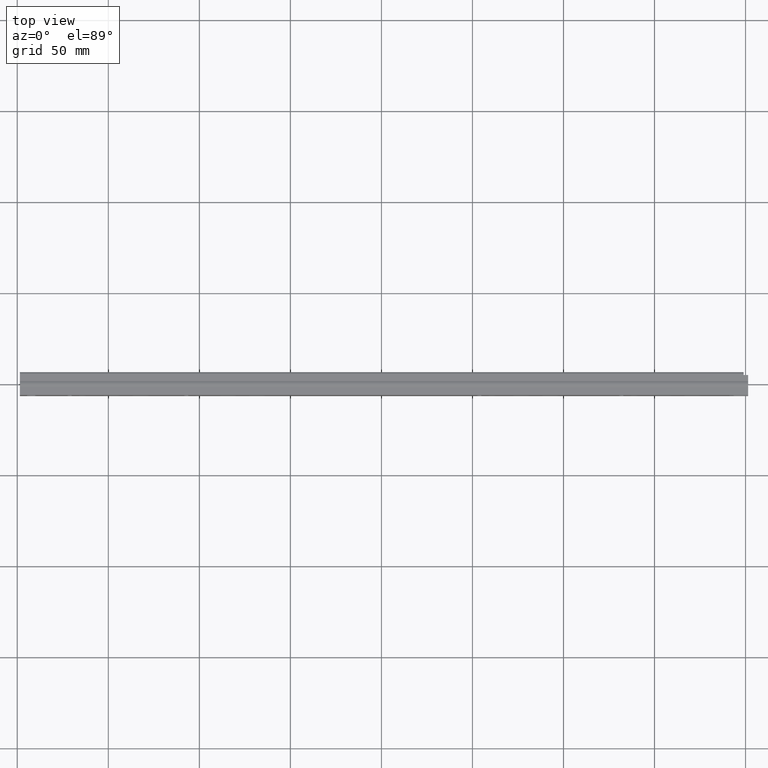
[diagram: clean part render]
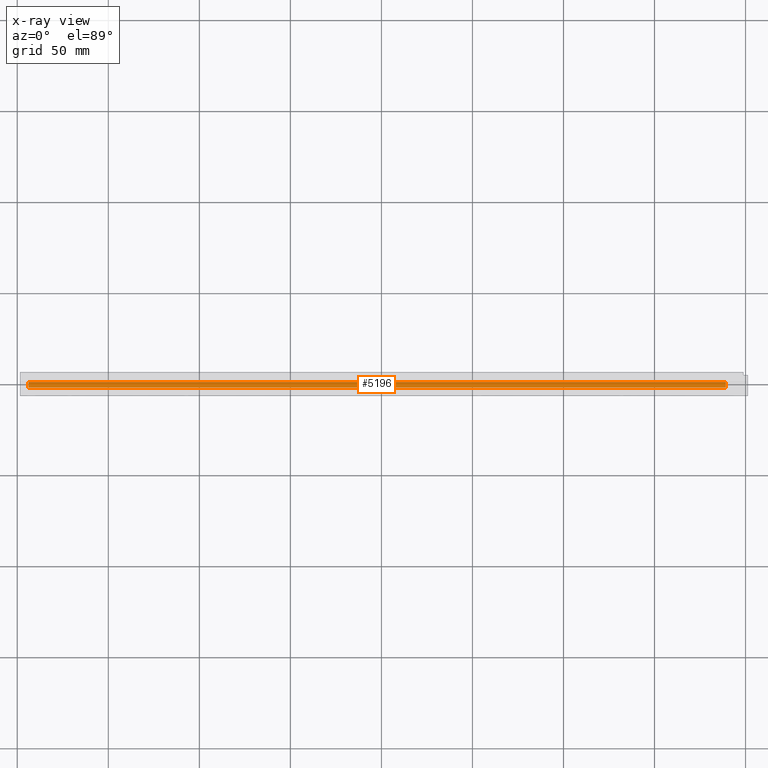
[diagram: x-ray — body ghosted, one internal face saturated and labeled with its STEP entity id]
A machine part, top view, then the same camera in x-ray: the body is ghosted and one INTERNAL B-rep face — a face not visible from any outside direction — is saturated and labeled: STEP entity #5196.
In plain terms, the highlighted cylindrical surface (edge-blend (fillet) strip) has radius 2.25 mm, axis along (1, -0, 0).
Its self-contained STEP definition (entity closure, byte-faithful):
#123=CYLINDRICAL_SURFACE('',#5616,2.25);
#404=FACE_OUTER_BOUND('',#719,.T.);
#719=EDGE_LOOP('',(#4339,#4340,#4341,#4342));
#1194=LINE('',#8309,#1732);
#1195=LINE('',#8311,#1733);
#1732=VECTOR('',#6778,383.);
#1733=VECTOR('',#6781,383.);
#2050=CIRCLE('',#5592,2.25);
#2055=CIRCLE('',#5610,2.25);
#2439=VERTEX_POINT('',#8222);
#2440=VERTEX_POINT('',#8224);
#2459=VERTEX_POINT('',#8288);
#2460=VERTEX_POINT('',#8290);
#3085=EDGE_CURVE('',#2439,#2440,#2050,.T.);
#3118=EDGE_CURVE('',#2459,#2460,#2055,.T.);
#3128=EDGE_CURVE('',#2439,#2460,#1194,.T.);
#3129=EDGE_CURVE('',#2440,#2459,#1195,.T.);
#4339=ORIENTED_EDGE('',*,*,#3128,.T.);
#4340=ORIENTED_EDGE('',*,*,#3118,.F.);
#4341=ORIENTED_EDGE('',*,*,#3129,.F.);
#4342=ORIENTED_EDGE('',*,*,#3085,.F.);
#5196=ADVANCED_FACE('',(#404),#123,.F.);
#5592=AXIS2_PLACEMENT_3D('',#8225,#6696,#6697);
#5610=AXIS2_PLACEMENT_3D('',#8291,#6760,#6761);
#5616=AXIS2_PLACEMENT_3D('',#8310,#6779,#6780);
#6696=DIRECTION('center_axis',(1.,0.,0.));
#6697=DIRECTION('ref_axis',(0.,-0.707572536328552,-0.706640719059962));
#6760=DIRECTION('center_axis',(-1.,0.,0.));
#6761=DIRECTION('ref_axis',(0.,-0.707572536328552,-0.706640719059962));
#6778=DIRECTION('',(1.,0.,0.));
#6779=DIRECTION('center_axis',(1.,0.,0.));
#6780=DIRECTION('ref_axis',(0.,-0.707572536328552,-0.706640719059962));
#6781=DIRECTION('',(1.,0.,0.));
#8222=CARTESIAN_POINT('',(-191.5,7.59203820673923,-12.6100583821151));
#8224=CARTESIAN_POINT('',(-191.5,4.5857864376269,-12.45));
#8225=CARTESIAN_POINT('Origin',(-191.5,5.99999999999999,-14.2));
#8288=CARTESIAN_POINT('',(191.5,4.5857864376269,-12.45));
#8290=CARTESIAN_POINT('',(191.5,7.59203820673923,-12.6100583821151));
#8291=CARTESIAN_POINT('Origin',(191.5,5.99999999999999,-14.2));
#8309=CARTESIAN_POINT('',(0.,7.59203820673923,-12.6100583821151));
#8310=CARTESIAN_POINT('Origin',(0.,5.99999999999999,-14.2));
#8311=CARTESIAN_POINT('',(0.,4.5857864376269,-12.45));